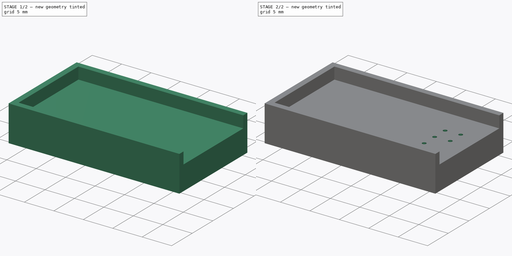
[diagram: build sequence overview — one tinted view per stage of 2, left to right]
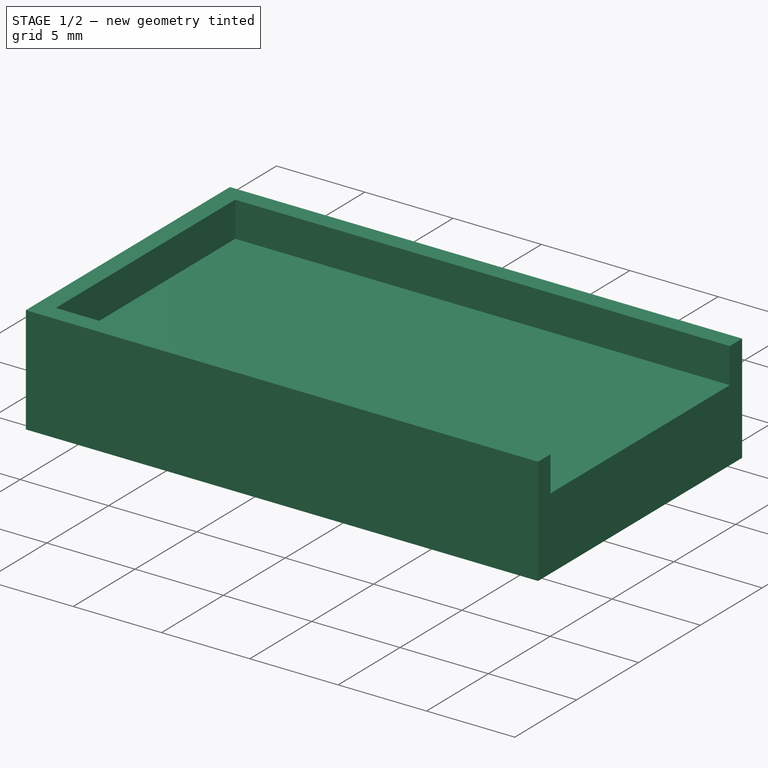
[diagram: stage 1 of 2 — iso view after this stage's code; geometry added in this stage tinted green]
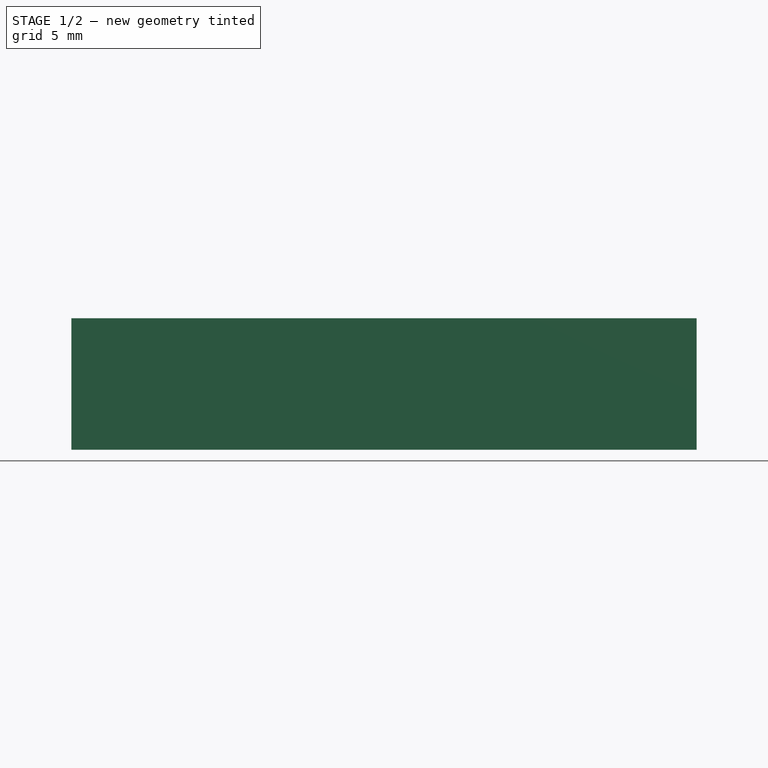
[diagram: stage 1 of 2 — front view after this stage's code; geometry added in this stage tinted green]
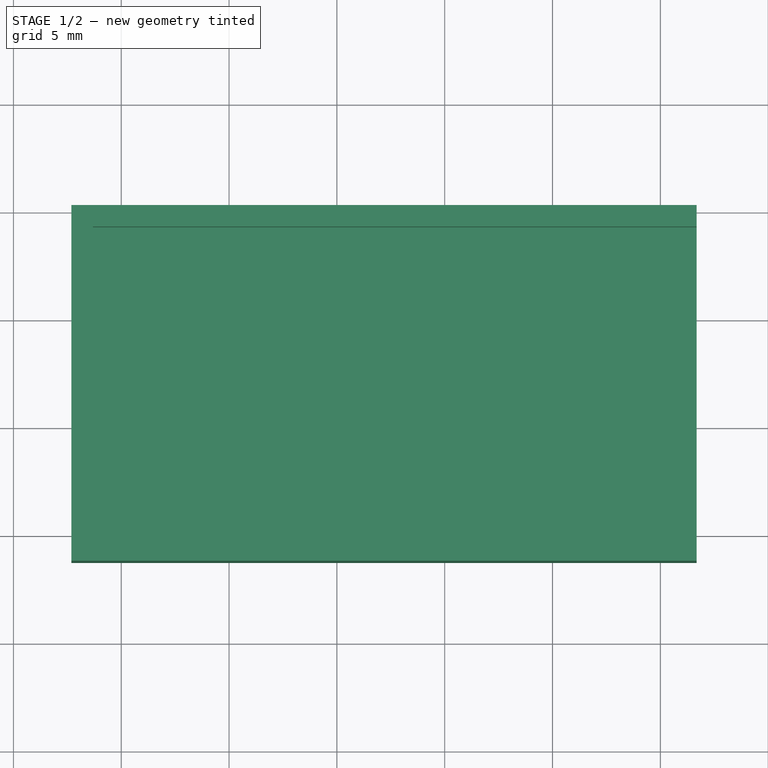
[diagram: stage 1 of 2 — top view after this stage's code; geometry added in this stage tinted green]
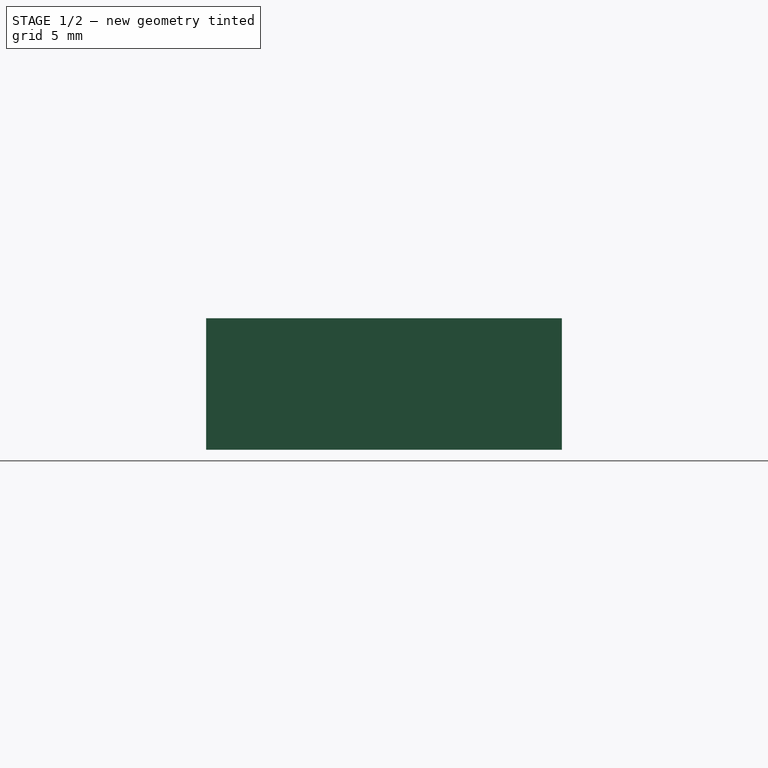
[diagram: stage 1 of 2 — right view after this stage's code; geometry added in this stage tinted green]
FCSTD DOCUMENT  (FreeCAD 0.16R6704 (Git))
Label: flashing_harness
License: All rights reserved
LicenseURL: http://en.wikipedia.org/wiki/All_rights_reserved
objects: Sketcher::SketchObject×3, PartDesign::Pocket×2, PartDesign::Pad×1, App::MeasureDistance×1
note: 9 computed .brp shape members not serialized (recipe doc carries the construction recipe); baked Part::Feature solids carry a one-line shape summary decoded from their .brp

FEATURE [Sketcher::SketchObject] Sketch
  Placement = pos=(0,0,0) rot=(1,0,0;3.14159rad)
  sketch-geometry (4):
    g0: LineSegment StartX=-7.31529 StartY=11.2409 StartZ=0 EndX=21.6847 EndY=11.2409 EndZ=0
    g1: LineSegment StartX=21.6847 StartY=11.2409 StartZ=0 EndX=21.6847 EndY=-5.25913 EndZ=0
    g2: LineSegment StartX=21.6847 StartY=-5.25913 StartZ=0 EndX=-7.31529 EndY=-5.25913 EndZ=0
    g3: LineSegment StartX=-7.31529 StartY=-5.25913 StartZ=0 EndX=-7.31529 EndY=11.2409 EndZ=0
  constraints (11):
    c: Coincident(g0,g1)
    c: Coincident(g1,g2)
    c: Coincident(g2,g3)
    c: Coincident(g3,g0)
    c: Horizontal(g0)
    c: Horizontal(g2)
    c: Vertical(g1)
    c: Vertical(g3)
    c: DistanceX(g0,g0) = 29  'length'
    c: DistanceY(g1,g1) = 16.5  'width'
    c: Equal(g0,g2)
FEATURE [PartDesign::Pad] Pad
  Length = 6.1
  Length2 = 100
  Placement = pos=(0,0,0) rot=(1,0,0;3.14159rad)
  Sketch = -> Sketch
  Type = 0
FEATURE [Sketcher::SketchObject] Sketch001  label="main cut"
  ExternalGeometry = -> [Pad]
  Support = -> Pad [Face5]
  sketch-geometry (7):
    g0: LineSegment StartX=-6.31529 StartY=4.25913 StartZ=0 EndX=43.6847 EndY=4.25913 EndZ=0
    g1: LineSegment StartX=43.6847 StartY=4.25913 StartZ=0 EndX=43.6847 EndY=-10.2409 EndZ=0
    g2: LineSegment StartX=43.6847 StartY=-10.2409 StartZ=0 EndX=-6.31529 EndY=-10.2409 EndZ=0
    g3: LineSegment StartX=-6.31529 StartY=-10.2409 StartZ=0 EndX=-6.31529 EndY=4.25913 EndZ=0
    g4: LineSegment StartX=6.46316 StartY=5.25913 StartZ=0 EndX=6.46316 EndY=4.25913 EndZ=0
    g5: LineSegment StartX=6.76365 StartY=-11.2409 StartZ=0 EndX=6.76365 EndY=-10.2409 EndZ=0
    g6: LineSegment StartX=-6.31529 StartY=-3.71981 StartZ=0 EndX=-7.31529 EndY=-3.71981 EndZ=0
  constraints (20):
    c: Coincident(g0,g1)
    c: Coincident(g1,g2)
    c: Coincident(g2,g3)
    c: Coincident(g3,g0)
    c: Vertical(g1)
    c: Vertical(g3)
    c: Parallel(g0,g2)
    c: PointOnObject(g4,g-3)
    c: PointOnObject(g4,g0)
    c: Perpendicular(g4,g-3)
    c: Perpendicular(g4,g0)
    c: PointOnObject(g5,g-4)
    c: PointOnObject(g5,g2)
    c: Perpendicular(g-4,g5)
    c: Equal(g5,g4)
    c: DistanceY(g4,g4) = 1
    c: PointOnObject(g6,g3)
    c: PointOnObject(g6,g-5)
    c: Horizontal(g6)
    c: DistanceX(g6,g6) = 1
FEATURE [PartDesign::Pocket] Pocket
  Length = 2
  Placement = pos=(0,0,0) rot=(1,0,0;3.14159rad)
  Sketch = -> Sketch001
  Type = 0
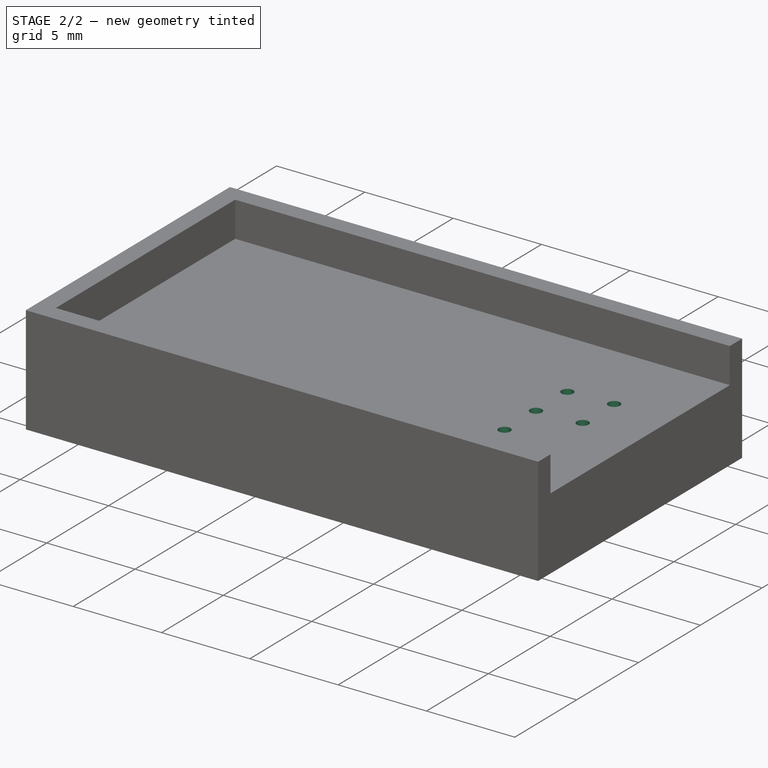
[diagram: stage 2 of 2 — iso view after this stage's code; geometry added in this stage tinted green]
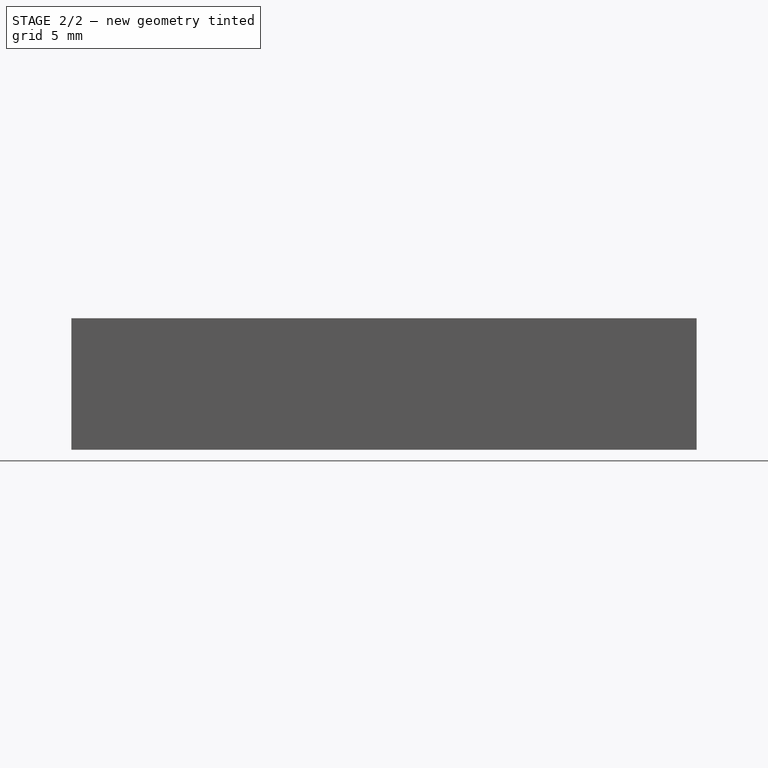
[diagram: stage 2 of 2 — front view after this stage's code; geometry added in this stage tinted green]
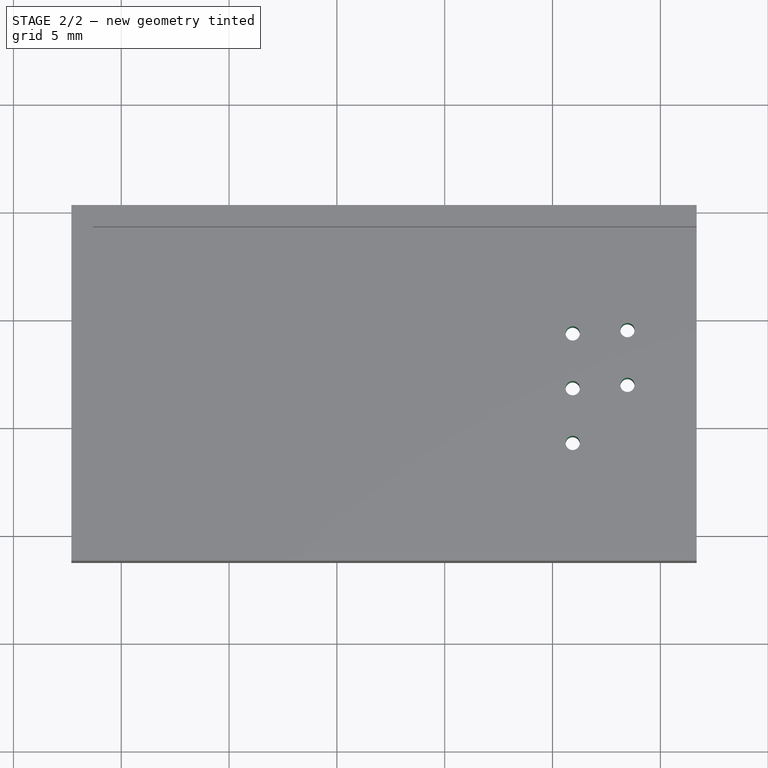
[diagram: stage 2 of 2 — top view after this stage's code; geometry added in this stage tinted green]
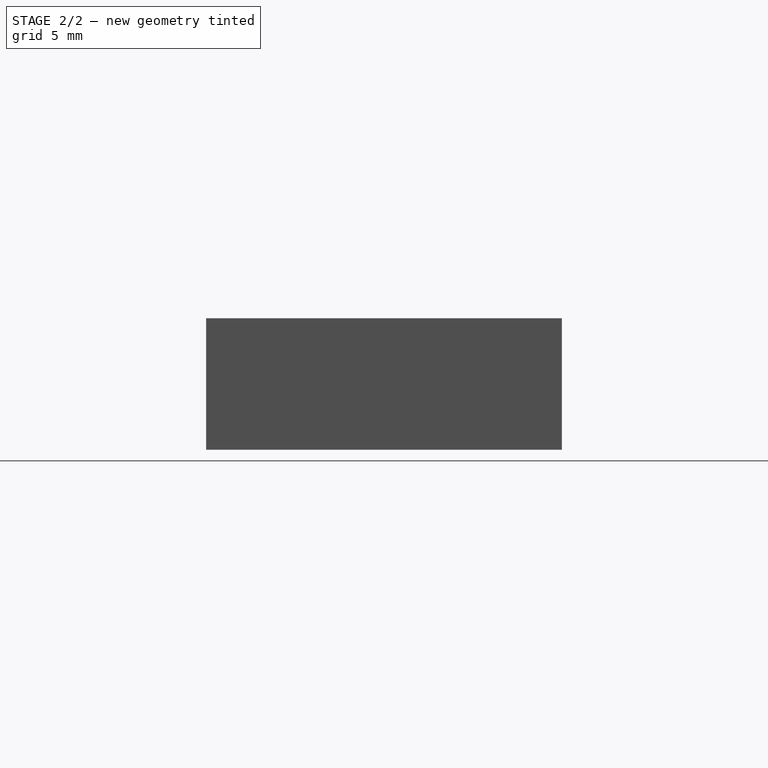
[diagram: stage 2 of 2 — right view after this stage's code; geometry added in this stage tinted green]
FEATURE [Sketcher::SketchObject] Sketch003
  ExternalGeometry = -> [Pocket]
  Placement = pos=(0,0,-2) rot=(0,0,1;0rad)
  Support = -> Pocket [Face8]
  sketch-geometry (5):
    g0: Circle CenterX=18.4747 CenterY=-0.508587 CenterZ=0 NormalX=0 NormalY=0 NormalZ=1 Radius=0.33
    g1: Circle CenterX=18.4747 CenterY=-3.04859 CenterZ=0 NormalX=0 NormalY=0 NormalZ=1 Radius=0.33
    g2: Circle CenterX=15.9347 CenterY=-3.20087 CenterZ=0 NormalX=0 NormalY=0 NormalZ=1 Radius=0.33
    g3: Circle CenterX=15.9347 CenterY=-0.660875 CenterZ=0 NormalX=0 NormalY=0 NormalZ=1 Radius=0.33
    g4: Circle CenterX=15.9347 CenterY=-5.74087 CenterZ=0 NormalX=0 NormalY=0 NormalZ=1 Radius=0.33
  constraints (10):
    c: Radius(g4) = 0.33
    c: Equal(g4,g2)
    c: Equal(g2,g1)
    c: Equal(g1,g0)
    c: Equal(g0,g3)
    c: DistanceY(g4,g2) = 2.54
    c: DistanceX(g2,g1) = 2.54
    c: DistanceY(g2,g3) = 2.54
    c: DistanceY(g1,g0) = 2.54
    c: DistanceX(g3,g0) = 2.54
FEATURE [PartDesign::Pocket] Pocket001
  Length = 5
  Placement = pos=(0,0,0) rot=(1,0,0;3.14159rad)
  Sketch = -> Sketch003
  Type = 0
FEATURE [App::MeasureDistance] Distance  label="Distance: 1.00004 mm"
  Distance = 1.00004
  P1 = (21.6847,-10.2317,-1)
  P2 = (21.6847,-10.2409,0)
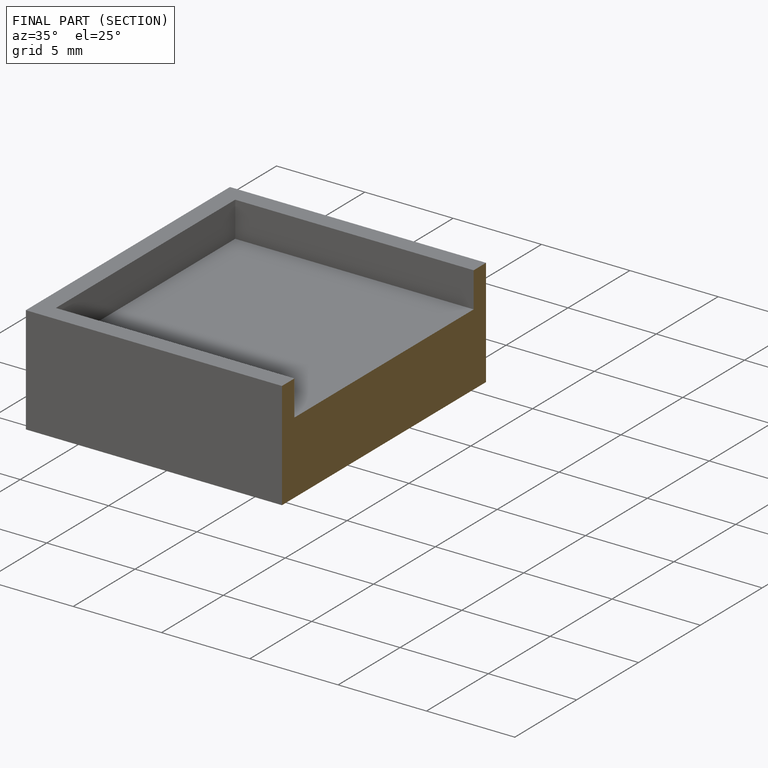
[diagram: finished part — half-section view (interior)]
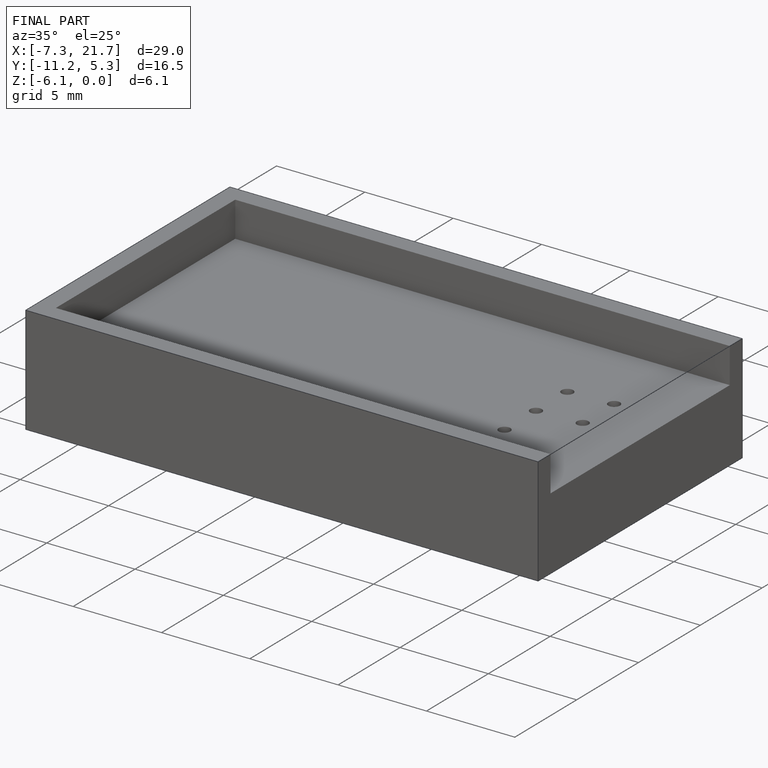
[diagram: finished part — iso view with bounding-box wireframe]
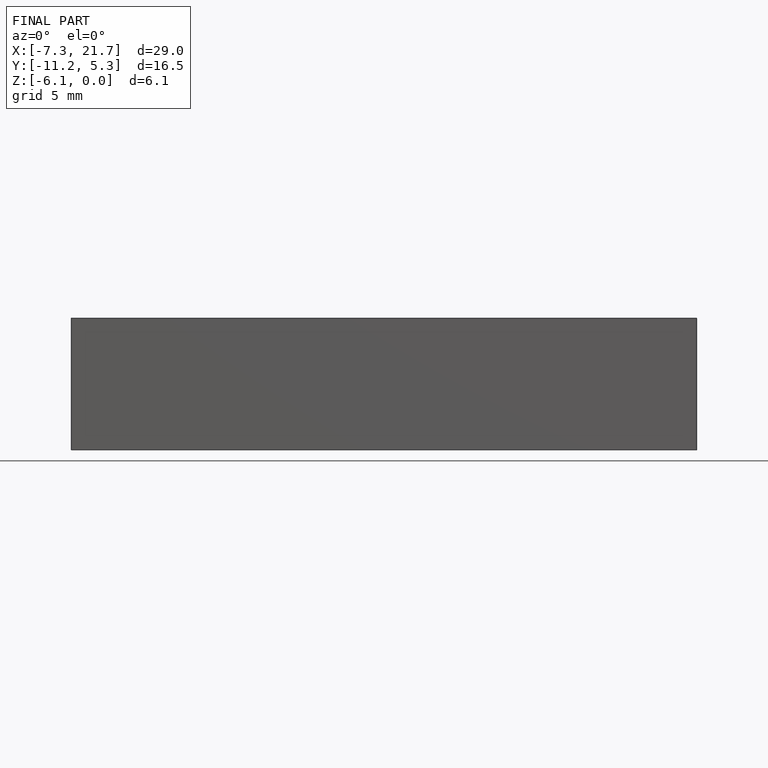
[diagram: finished part — front view with bounding-box wireframe]
